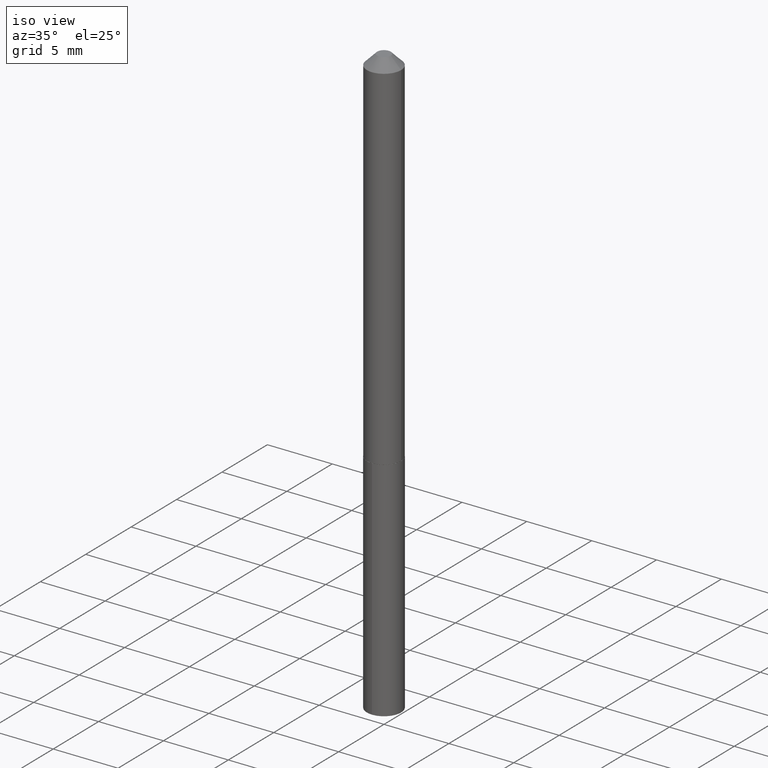
[diagram: clean part render]
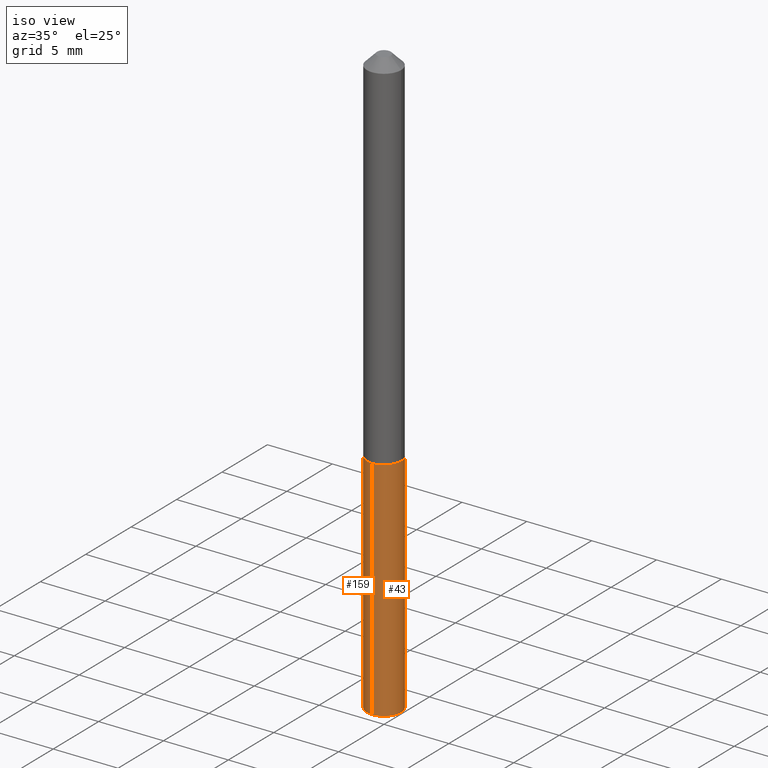
[diagram: same view with one multi-face feature highlighted, each face labeled with its STEP entity id]
A machine part, iso view. The highlighted faces form ONE feature: a constant-radius fillet chain: 2 tangent blend faces with common blend radius 1.3208 mm. The faces share edges in the B-rep.
Their STEP definitions:
[1] entity #43 (Cylinder):
#27 = DIRECTION ( 'NONE',  ( -2.445478414285621524E-29, 3.491467579496391943E-15, 1.000000000000000000 ) ) ;
#30 = CIRCLE ( 'NONE', #219, 0.05199999999999999067 ) ;
#31 = VERTEX_POINT ( 'NONE', #194 ) ;
#38 = DIRECTION ( 'NONE',  ( -2.445478414285621524E-29, 3.491467579496391943E-15, 1.000000000000000000 ) ) ;
#43 = ADVANCED_FACE ( 'NONE', ( #318 ), #85, .T. ) ;
#52 = DIRECTION ( 'NONE',  ( -2.445478414285621524E-29, 3.491467579496391943E-15, 1.000000000000000000 ) ) ;
#66 = ORIENTED_EDGE ( 'NONE', *, *, #104, .F. ) ;
#85 = CYLINDRICAL_SURFACE ( 'NONE', #262, 0.05199999999999999067 ) ;
#90 = DIRECTION ( 'NONE',  ( -2.445478414285621524E-29, 3.491467579496391943E-15, 1.000000000000000000 ) ) ;
#104 = EDGE_CURVE ( 'NONE', #31, #338, #115, .T. ) ;
#112 = ORIENTED_EDGE ( 'NONE', *, *, #301, .T. ) ;
#115 = LINE ( 'NONE', #351, #348 ) ;
#126 = DIRECTION ( 'NONE',  ( -6.982962677686266711E-15, -1.000000000000000000, 5.253553833969737838E-15 ) ) ;
#129 = DIRECTION ( 'NONE',  ( -6.982962677686266711E-15, -1.000000000000000000, 2.626776916984868919E-15 ) ) ;
#135 = CIRCLE ( 'NONE', #282, 0.05199999999999999067 ) ;
#151 = CARTESIAN_POINT ( 'NONE',  ( 3.694822225952959601E-16, 0.05199999999999374567, -1.793573547818158254 ) ) ;
#170 = VECTOR ( 'NONE', #368, 39.37007874015748143 ) ;
#182 = CARTESIAN_POINT ( 'NONE',  ( 3.694822225952789996E-16, 0.05199999999999613265, -1.104000000000000314 ) ) ;
#187 = CARTESIAN_POINT ( 'NONE',  ( 2.699797562028391099E-29, -3.854595398082833708E-15, -1.104000000000000092 ) ) ;
#194 = CARTESIAN_POINT ( 'NONE',  ( -3.631140592396419767E-16, -0.05200000000000627731, -1.793573547818157587 ) ) ;
#219 = AXIS2_PLACEMENT_3D ( 'NONE', #187, #38, #129 ) ;
#223 = LINE ( 'NONE', #182, #170 ) ;
#229 = ORIENTED_EDGE ( 'NONE', *, *, #263, .F. ) ;
#239 = CARTESIAN_POINT ( 'NONE',  ( 2.699797562028391099E-29, -3.854595398082833708E-15, -1.104000000000000092 ) ) ;
#250 = CARTESIAN_POINT ( 'NONE',  ( 4.386134788280050276E-29, -6.262219083968236584E-15, -1.793573547818158032 ) ) ;
#262 = AXIS2_PLACEMENT_3D ( 'NONE', #239, #52, #295 ) ;
#263 = EDGE_CURVE ( 'NONE', #338, #379, #30, .T. ) ;
#267 = EDGE_CURVE ( 'NONE', #31, #322, #135, .T. ) ;
#271 = CARTESIAN_POINT ( 'NONE',  ( 3.694822225952959601E-16, 0.05199999999999613265, -1.104000000000000314 ) ) ;
#282 = AXIS2_PLACEMENT_3D ( 'NONE', #250, #90, #126 ) ;
#295 = DIRECTION ( 'NONE',  ( -6.982962677686266711E-15, -1.000000000000000000, 2.626776916984868919E-15 ) ) ;
#301 = EDGE_CURVE ( 'NONE', #322, #379, #223, .T. ) ;
#318 = FACE_OUTER_BOUND ( 'NONE', #387, .T. ) ;
#322 = VERTEX_POINT ( 'NONE', #151 ) ;
#324 = ORIENTED_EDGE ( 'NONE', *, *, #267, .T. ) ;
#325 = CARTESIAN_POINT ( 'NONE',  ( -3.631140592396587893E-16, -0.05200000000000384870, -1.104000000000000092 ) ) ;
#338 = VERTEX_POINT ( 'NONE', #325 ) ;
#348 = VECTOR ( 'NONE', #27, 39.37007874015748143 ) ;
#351 = CARTESIAN_POINT ( 'NONE',  ( -3.631140592396587893E-16, -0.05200000000000384870, -1.104000000000000092 ) ) ;
#368 = DIRECTION ( 'NONE',  ( -2.445478414285621524E-29, 3.491467579496391943E-15, 1.000000000000000000 ) ) ;
#379 = VERTEX_POINT ( 'NONE', #271 ) ;
#387 = EDGE_LOOP ( 'NONE', ( #324, #112, #229, #66 ) ) ;
[2] entity #159 (Cylinder):
#4 = EDGE_CURVE ( 'NONE', #322, #31, #319, .T. ) ;
#27 = DIRECTION ( 'NONE',  ( -2.445478414285621524E-29, 3.491467579496391943E-15, 1.000000000000000000 ) ) ;
#31 = VERTEX_POINT ( 'NONE', #194 ) ;
#34 = DIRECTION ( 'NONE',  ( -6.982962677686266711E-15, -1.000000000000000000, 2.626776916984868919E-15 ) ) ;
#36 = ORIENTED_EDGE ( 'NONE', *, *, #346, .F. ) ;
#53 = CARTESIAN_POINT ( 'NONE',  ( 2.699797562028391099E-29, -3.854595398082833708E-15, -1.104000000000000092 ) ) ;
#80 = DIRECTION ( 'NONE',  ( -2.445478414285621524E-29, 3.491467579496391943E-15, 1.000000000000000000 ) ) ;
#104 = EDGE_CURVE ( 'NONE', #31, #338, #115, .T. ) ;
#115 = LINE ( 'NONE', #351, #348 ) ;
#122 = AXIS2_PLACEMENT_3D ( 'NONE', #312, #188, #331 ) ;
#124 = ORIENTED_EDGE ( 'NONE', *, *, #301, .F. ) ;
#146 = AXIS2_PLACEMENT_3D ( 'NONE', #302, #215, #34 ) ;
#151 = CARTESIAN_POINT ( 'NONE',  ( 3.694822225952959601E-16, 0.05199999999999374567, -1.793573547818158254 ) ) ;
#159 = ADVANCED_FACE ( 'NONE', ( #213 ), #317, .T. ) ;
#170 = VECTOR ( 'NONE', #368, 39.37007874015748143 ) ;
#178 = ORIENTED_EDGE ( 'NONE', *, *, #104, .T. ) ;
#182 = CARTESIAN_POINT ( 'NONE',  ( 3.694822225952789996E-16, 0.05199999999999613265, -1.104000000000000314 ) ) ;
#188 = DIRECTION ( 'NONE',  ( -2.445478414285621524E-29, 3.491467579496391943E-15, 1.000000000000000000 ) ) ;
#194 = CARTESIAN_POINT ( 'NONE',  ( -3.631140592396419767E-16, -0.05200000000000627731, -1.793573547818157587 ) ) ;
#213 = FACE_OUTER_BOUND ( 'NONE', #278, .T. ) ;
#215 = DIRECTION ( 'NONE',  ( -2.445478414285621524E-29, 3.491467579496391943E-15, 1.000000000000000000 ) ) ;
#223 = LINE ( 'NONE', #182, #170 ) ;
#247 = AXIS2_PLACEMENT_3D ( 'NONE', #53, #80, #260 ) ;
#260 = DIRECTION ( 'NONE',  ( -6.982962677686266711E-15, -1.000000000000000000, 2.626776916984868919E-15 ) ) ;
#271 = CARTESIAN_POINT ( 'NONE',  ( 3.694822225952959601E-16, 0.05199999999999613265, -1.104000000000000314 ) ) ;
#278 = EDGE_LOOP ( 'NONE', ( #124, #303, #178, #36 ) ) ;
#294 = CIRCLE ( 'NONE', #146, 0.05199999999999999067 ) ;
#301 = EDGE_CURVE ( 'NONE', #322, #379, #223, .T. ) ;
#302 = CARTESIAN_POINT ( 'NONE',  ( 2.699797562028391099E-29, -3.854595398082833708E-15, -1.104000000000000092 ) ) ;
#303 = ORIENTED_EDGE ( 'NONE', *, *, #4, .T. ) ;
#312 = CARTESIAN_POINT ( 'NONE',  ( 4.386134788280050276E-29, -6.262219083968236584E-15, -1.793573547818158032 ) ) ;
#317 = CYLINDRICAL_SURFACE ( 'NONE', #247, 0.05199999999999999067 ) ;
#319 = CIRCLE ( 'NONE', #122, 0.05199999999999999067 ) ;
#322 = VERTEX_POINT ( 'NONE', #151 ) ;
#325 = CARTESIAN_POINT ( 'NONE',  ( -3.631140592396587893E-16, -0.05200000000000384870, -1.104000000000000092 ) ) ;
#331 = DIRECTION ( 'NONE',  ( -6.982962677686266711E-15, -1.000000000000000000, 5.253553833969737838E-15 ) ) ;
#338 = VERTEX_POINT ( 'NONE', #325 ) ;
#346 = EDGE_CURVE ( 'NONE', #379, #338, #294, .T. ) ;
#348 = VECTOR ( 'NONE', #27, 39.37007874015748143 ) ;
#351 = CARTESIAN_POINT ( 'NONE',  ( -3.631140592396587893E-16, -0.05200000000000384870, -1.104000000000000092 ) ) ;
#368 = DIRECTION ( 'NONE',  ( -2.445478414285621524E-29, 3.491467579496391943E-15, 1.000000000000000000 ) ) ;
#379 = VERTEX_POINT ( 'NONE', #271 ) ;